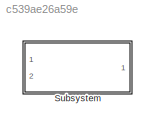
MODEL slx_c539ae26a59e
KIND library
CONFIG AbsTol = auto
CONFIG EnableMultiTasking = off
CONFIG FixedStep = auto
CONFIG MaxStep = auto
CONFIG MinStep = auto
CONFIG RelTol = 1e-3
CONFIG SampleTimeConstraint = Unconstrained
CONFIG Solver = VariableStepAuto
CONFIG SolverName = VariableStepAuto
CONFIG StartTime = 0.0
CONFIG StopTime = 10.0
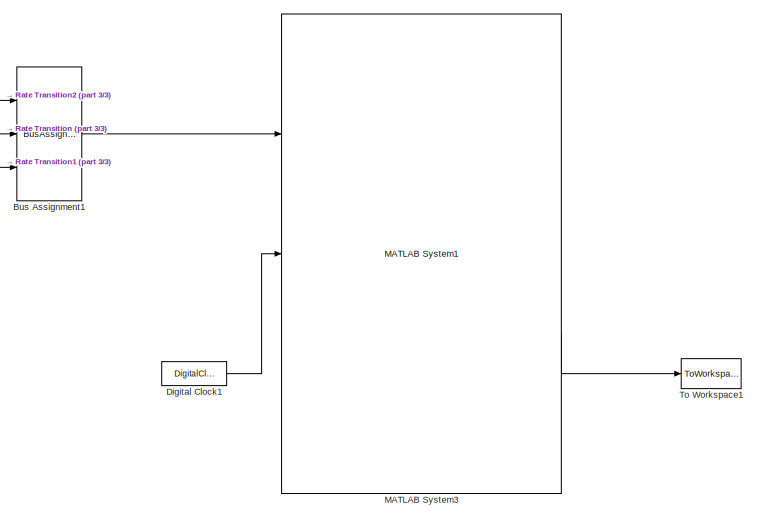
[diagram: Subsystem - part 1/3, top center region]
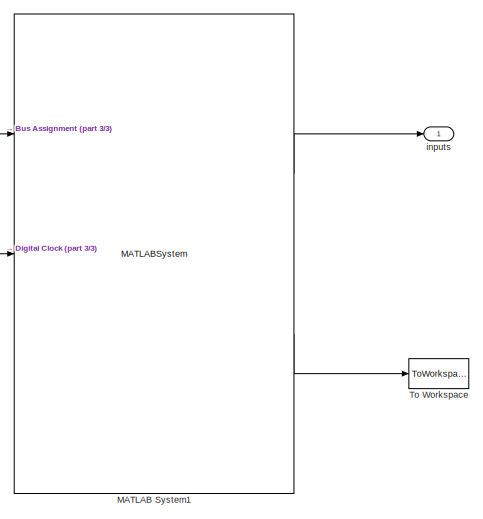
[diagram: Subsystem - part 2/3, middle right region]
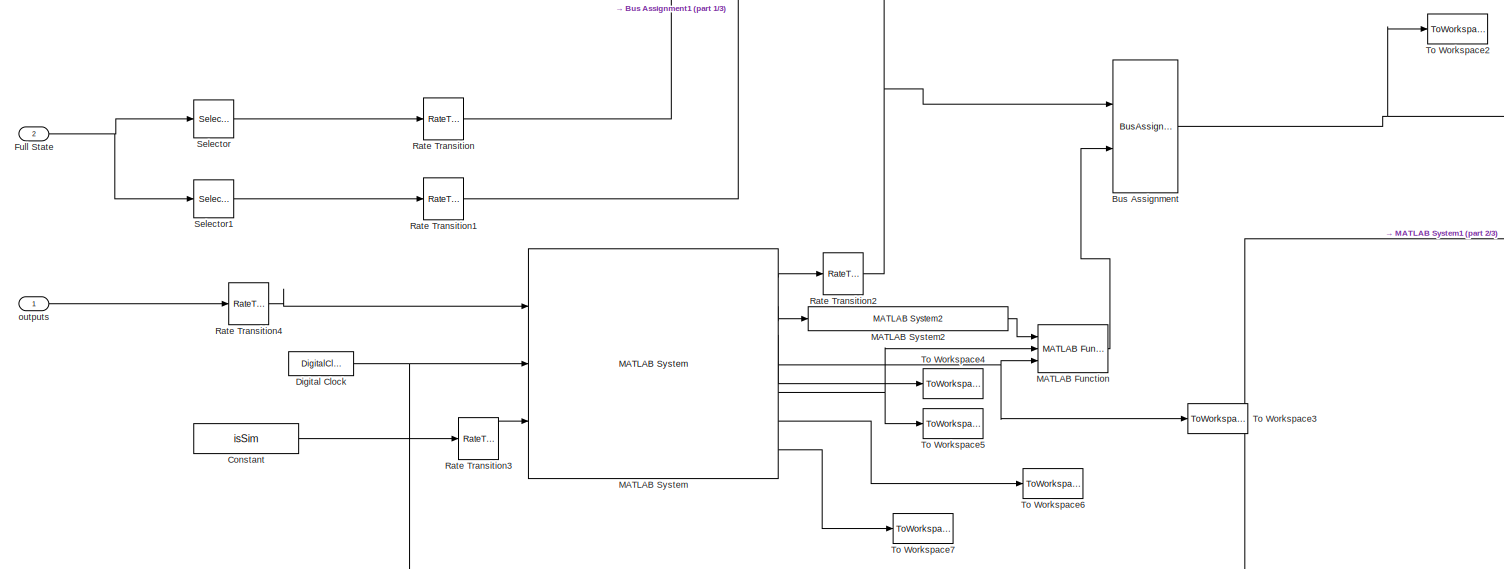
[diagram: Subsystem - part 3/3, central region]
BLOCK [SubSystem] Subsystem
  Ports = [2, 1]
  RequestExecContextInheritance = off
  Variant = off
BLOCK [BusAssignment] Subsystem/Bus Assignment
  AssignedSignals = dq
  Ports = [2, 1]
BLOCK [BusAssignment] Subsystem/Bus Assignment1
  AssignedSignals = q,dq
  Ports = [3, 1]
BLOCK [Constant] Subsystem/Constant
  LockScale = on
  OutDataTypeStr = int8
  Value = isSim
BLOCK [DigitalClock] Subsystem/Digital Clock
  SampleTime = UserParams.SampleTime
BLOCK [DigitalClock] Subsystem/Digital Clock1
  SampleTime = UserParams.SampleTime
BLOCK [Inport] Subsystem/Full State
  IconDisplay = Port number
  Port = 2
BLOCK [Reference] Subsystem/MATLAB Function  REF=Cassie_CommandBlock_Library_5/Subsystem/MATLAB Function
  Ports = [3, 1]
  SourceBlock = Cassie_CommandBlock_Library_5/Subsystem/MATLAB Function
  SourceType = SubSystem
BLOCK [Reference] Subsystem/MATLAB System  REF=Cassie_CommandBlock_Library_5/Subsystem/MATLAB System
  Ports = [3, 7]
  SourceBlock = Cassie_CommandBlock_Library_5/Subsystem/MATLAB System
  SourceType = StateEstimator_2
BLOCK [MATLABSystem] Subsystem/MATLAB System1
  MaskDisplay = disp('Cassie_Controller_2');\nport_label('output',1,'userInputs');\nport_label('output',2,'Data');
  MaskType = Cassie_Controller_2
  Ports = [3, 2]
  SimulateUsing = Code generation
  System = Cassie_Controller_2
  cov_dq_estimated = cov_dq_estimated
  cov_q_measured = cov_q_measured
  sample_time = sample_time
  step_time = 0.3
BLOCK [Reference] Subsystem/MATLAB System2  REF=Cassie_CommandBlock_Library_5/Subsystem/MATLAB System2
  Ports = [1, 1]
  SourceBlock = Cassie_CommandBlock_Library_5/Subsystem/MATLAB System2
  SourceType = PolyRegressionFilter
BLOCK [Reference] Subsystem/MATLAB System3  REF=Cassie_CommandBlock_Library_2/Subsystem/MATLAB System1
  Ports = [3, 2]
  SourceBlock = Cassie_CommandBlock_Library_2/Subsystem/MATLAB System1
  SourceType = Cassie_Controller_2
BLOCK [RateTransition] Subsystem/Rate Transition
  OutPortSampleTime = sample_time
BLOCK [RateTransition] Subsystem/Rate Transition1
  OutPortSampleTime = sample_time
BLOCK [RateTransition] Subsystem/Rate Transition2
  OutPortSampleTime = sample_time
BLOCK [RateTransition] Subsystem/Rate Transition3
  OutPortSampleTime = sample_time
BLOCK [RateTransition] Subsystem/Rate Transition4
  OutPortSampleTime = sample_time
BLOCK [Selector] Subsystem/Selector
  IndexOptions = Index vector (dialog)
  Indices = 1:20
  InputPortWidth = 40
  OutputSizes = 1
  Ports = [1, 1]
BLOCK [Selector] Subsystem/Selector1
  IndexOptions = Index vector (dialog)
  Indices = 21:40
  InputPortWidth = 40
  OutputSizes = 1
  Ports = [1, 1]
BLOCK [ToWorkspace] Subsystem/To Workspace
  FixptAsFi = on
  MaxDataPoints = inf
  Ports = [1]
  SampleTime = -1
  Save2DSignal = 3-D array (concatenate along third dimension)
  SaveFormat = Timeseries
  VariableName = Data
BLOCK [ToWorkspace] Subsystem/To Workspace1
  FixptAsFi = on
  MaxDataPoints = inf
  Ports = [1]
  SampleTime = -1
  Save2DSignal = 3-D array (concatenate along third dimension)
  SaveFormat = Timeseries
  VariableName = Data_perfect
BLOCK [ToWorkspace] Subsystem/To Workspace2
  FixptAsFi = on
  MaxDataPoints = inf
  Ports = [1]
  SampleTime = -1
  Save2DSignal = 3-D array (concatenate along third dimension)
  SaveFormat = Timeseries
  VariableName = EstStates
BLOCK [ToWorkspace] Subsystem/To Workspace3
  FixptAsFi = on
  MaxDataPoints = inf
  Ports = [1]
  SampleTime = -1
  Save2DSignal = 3-D array (concatenate along third dimension)
  SaveFormat = Timeseries
  VariableName = EulerRates
BLOCK [ToWorkspace] Subsystem/To Workspace4
  FixptAsFi = on
  MaxDataPoints = inf
  Ports = [1]
  SampleTime = -1
  Save2DSignal = 3-D array (concatenate along third dimension)
  SaveFormat = Timeseries
  VariableName = qxyz
BLOCK [ToWorkspace] Subsystem/To Workspace5
  FixptAsFi = on
  MaxDataPoints = inf
  Ports = [1]
  SampleTime = -1
  Save2DSignal = 3-D array (concatenate along third dimension)
  SaveFormat = Timeseries
  VariableName = dqxyz
BLOCK [ToWorkspace] Subsystem/To Workspace6
  FixptAsFi = on
  MaxDataPoints = inf
  Ports = [1]
  SampleTime = -1
  Save2DSignal = 3-D array (concatenate along third dimension)
  SaveFormat = Timeseries
  VariableName = IT
BLOCK [ToWorkspace] Subsystem/To Workspace7
  FixptAsFi = on
  MaxDataPoints = inf
  Ports = [1]
  SampleTime = -1
  Save2DSignal = 3-D array (concatenate along third dimension)
  SaveFormat = Timeseries
  VariableName = a_world
BLOCK [Outport] Subsystem/inputs 
  IconDisplay = Port number
BLOCK [Inport] Subsystem/outputs
  IconDisplay = Port number
  OutDataTypeStr = Bus: CassieOutBus
LINE Subsystem/Bus Assignment1:1 -> Subsystem/MATLAB System3:1
NET Subsystem/Bus Assignment:1 -> Subsystem/MATLAB System1:1, Subsystem/To Workspace2:1
LINE Subsystem/Constant:1 -> Subsystem/Rate Transition3:1
LINE Subsystem/Digital Clock1:1 -> Subsystem/MATLAB System3:2
NET Subsystem/Digital Clock:1 -> Subsystem/MATLAB System1:2, Subsystem/MATLAB System:2
NET Subsystem/Full State:1 -> Subsystem/Selector1:1, Subsystem/Selector:1
LINE Subsystem/MATLAB Function:1 -> Subsystem/Bus Assignment:2
LINE Subsystem/MATLAB System1:1 -> Subsystem/inputs :1
LINE Subsystem/MATLAB System1:2 -> Subsystem/To Workspace:1
LINE Subsystem/MATLAB System2:1 -> Subsystem/MATLAB Function:1
LINE Subsystem/MATLAB System3:2 -> Subsystem/To Workspace1:1
LINE Subsystem/MATLAB System:1 -> Subsystem/Rate Transition2:1
LINE Subsystem/MATLAB System:2 -> Subsystem/MATLAB System2:1
NET Subsystem/MATLAB System:3 -> Subsystem/MATLAB Function:3, Subsystem/To Workspace3:1
LINE Subsystem/MATLAB System:4 -> Subsystem/To Workspace4:1
NET Subsystem/MATLAB System:5 -> Subsystem/MATLAB Function:2, Subsystem/To Workspace5:1
LINE Subsystem/MATLAB System:6 -> Subsystem/To Workspace6:1
LINE Subsystem/MATLAB System:7 -> Subsystem/To Workspace7:1
LINE Subsystem/Rate Transition1:1 -> Subsystem/Bus Assignment1:3
NET Subsystem/Rate Transition2:1 -> Subsystem/Bus Assignment1:1, Subsystem/Bus Assignment:1
LINE Subsystem/Rate Transition3:1 -> Subsystem/MATLAB System:3
LINE Subsystem/Rate Transition4:1 -> Subsystem/MATLAB System:1
LINE Subsystem/Rate Transition:1 -> Subsystem/Bus Assignment1:2
LINE Subsystem/Selector1:1 -> Subsystem/Rate Transition1:1
LINE Subsystem/Selector:1 -> Subsystem/Rate Transition:1
LINE Subsystem/outputs:1 -> Subsystem/Rate Transition4:1
note: NET lines group one-source signal fan-out (src -> all destinations, sorted); 1:1 wires keep LINE
